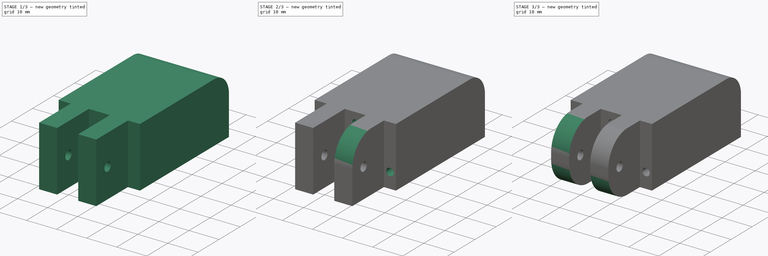
[diagram: build sequence overview — one tinted view per stage of 3, left to right]
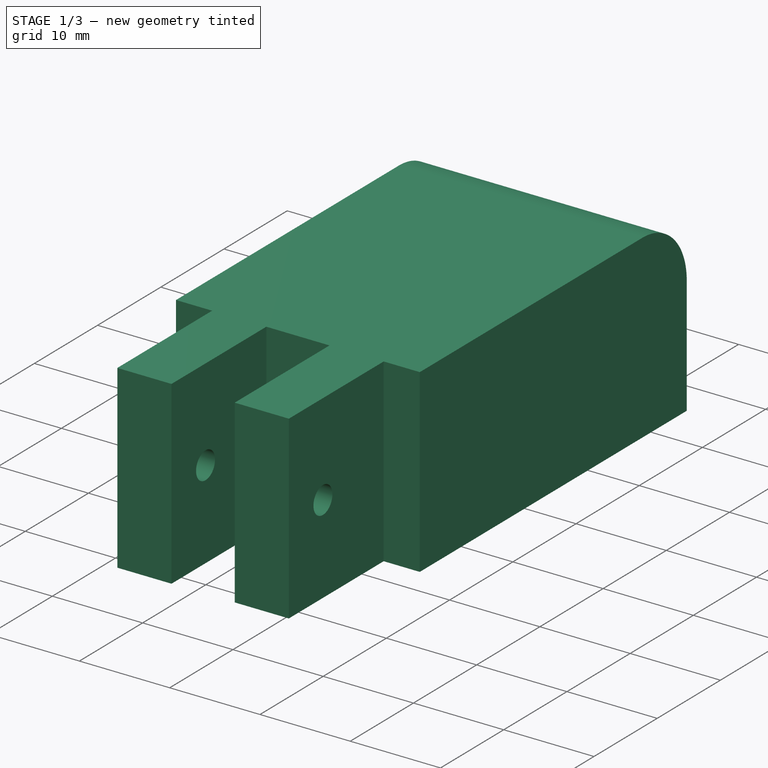
[diagram: stage 1 of 3 — iso view after this stage's code; geometry added in this stage tinted green]
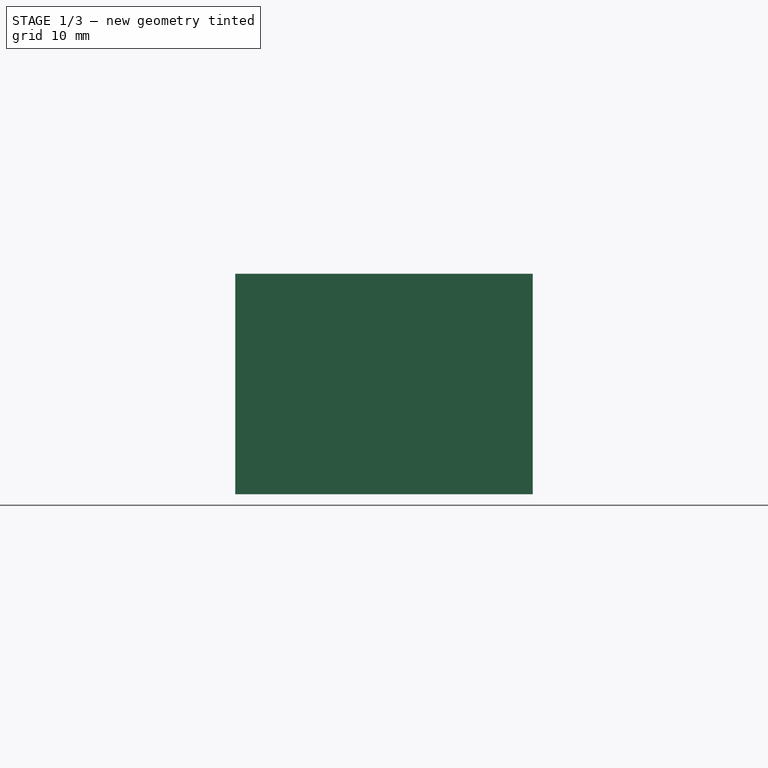
[diagram: stage 1 of 3 — front view after this stage's code; geometry added in this stage tinted green]
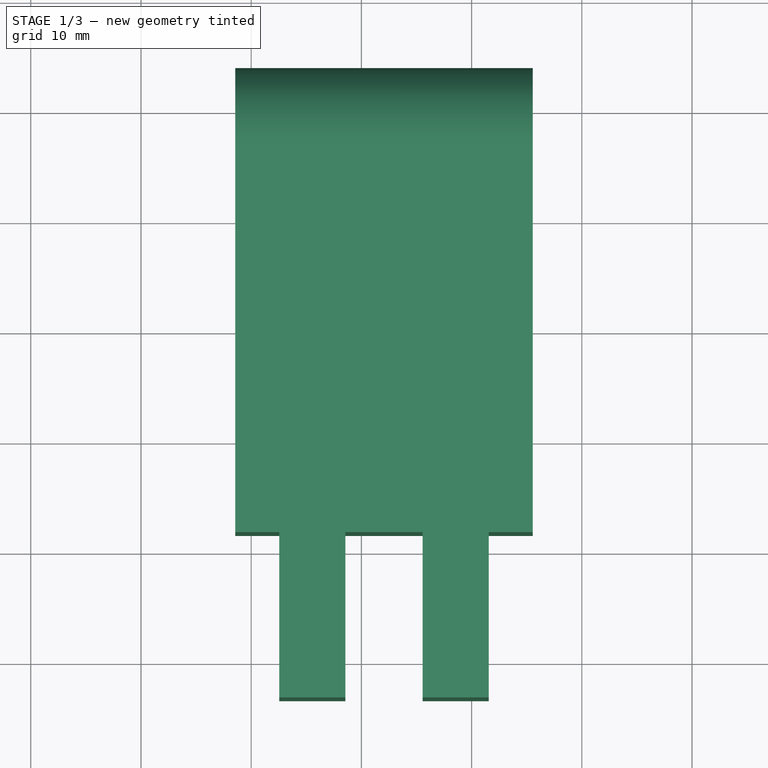
[diagram: stage 1 of 3 — top view after this stage's code; geometry added in this stage tinted green]
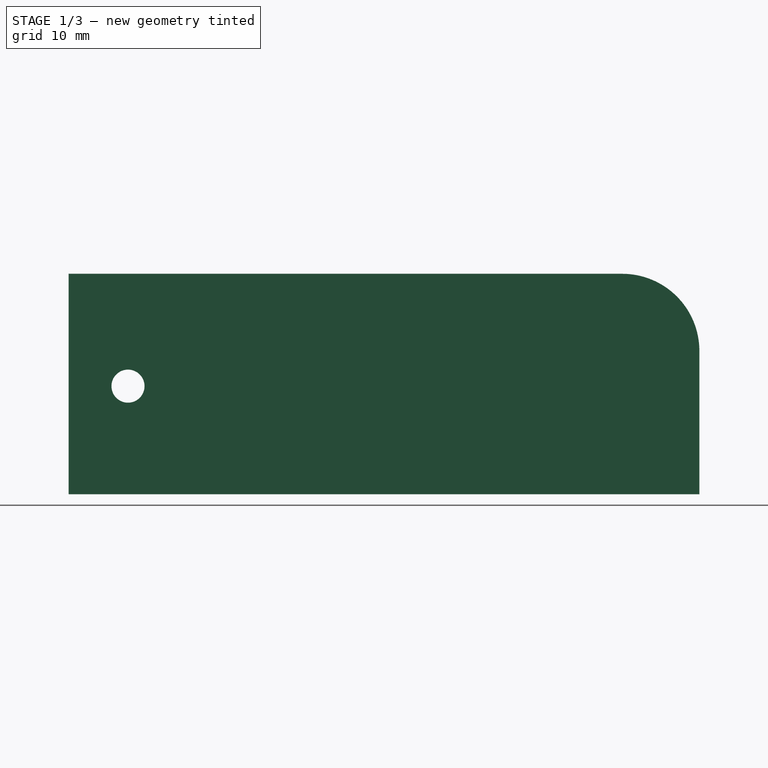
[diagram: stage 1 of 3 — right view after this stage's code; geometry added in this stage tinted green]
FCSTD DOCUMENT  (FreeCAD 0.20R29601 (Git))
Label: thumb_distal_final
License: All rights reserved
LicenseURL: http://en.wikipedia.org/wiki/All_rights_reserved
objects: PartDesign::Fillet×5, Sketcher::SketchObject×3, PartDesign::Pocket×2, PartDesign::Pad×1, PartDesign::Body×1
note: 20 computed .brp shape members not serialized (recipe doc carries the construction recipe); baked Part::Feature solids carry a one-line shape summary decoded from their .brp

FEATURE [Sketcher::SketchObject] Sketch
  FullyConstrained = false
  MapMode = 5
  Support = -> [XY_Plane]
  sketch-geometry (14):
    g0: LineSegment StartX=-31.448 StartY=43.8776 StartZ=0 EndX=-31.448 EndY=36.6423 EndZ=0
    g1: LineSegment StartX=-31.448 StartY=36.6423 StartZ=0 EndX=-31.448 EndY=1.6423 EndZ=0
    g2: LineSegment StartX=-31.448 StartY=1.6423 StartZ=0 EndX=-27.448 EndY=1.64228 EndZ=0
    g3: LineSegment StartX=-27.448 StartY=1.64228 StartZ=0 EndX=-27.448 EndY=-13.3577 EndZ=0
    g4: LineSegment StartX=-27.448 StartY=-13.3577 StartZ=0 EndX=-21.448 EndY=-13.3577 EndZ=0
    g5: LineSegment StartX=-21.448 StartY=-13.3577 StartZ=0 EndX=-21.448 EndY=1.64228 EndZ=0
    g6: LineSegment StartX=-21.448 StartY=1.64228 StartZ=0 EndX=-14.448 EndY=1.64228 EndZ=0
    g7: LineSegment StartX=-14.448 StartY=1.64228 StartZ=0 EndX=-14.448 EndY=-13.3577 EndZ=0
    g8: LineSegment StartX=-14.448 StartY=-13.3577 StartZ=0 EndX=-8.448 EndY=-13.3577 EndZ=0
    g9: LineSegment StartX=-8.448 StartY=-13.3577 StartZ=0 EndX=-8.448 EndY=1.64193 EndZ=0
    g10: LineSegment StartX=-8.448 StartY=1.64193 StartZ=0 EndX=-4.448 EndY=1.64193 EndZ=0
    g11: LineSegment StartX=-4.448 StartY=1.64193 StartZ=0 EndX=-4.448 EndY=36.6419 EndZ=0
    g12: LineSegment StartX=-4.448 StartY=36.6419 StartZ=0 EndX=-4.448 EndY=43.8776 EndZ=0
    g13: LineSegment StartX=-4.448 StartY=43.8776 StartZ=0 EndX=-31.448 EndY=43.8776 EndZ=0
  constraints (38):
    c: Vertical(g0)
    c: Coincident(g0,g1)
    c: Vertical(g1)
    c: Coincident(g1,g2)
    c: Coincident(g2,g3)
    c: Vertical(g3)
    c: Coincident(g3,g4)
    c: Horizontal(g4)
    c: Coincident(g4,g5)
    c: Vertical(g5)
    c: Coincident(g5,g6)
    c: Horizontal(g6)
    c: Coincident(g6,g7)
    c: Vertical(g7)
    c: Coincident(g7,g8)
    c: Horizontal(g8)
    c: Coincident(g8,g9)
    c: Vertical(g9)
    c: Coincident(g9,g10)
    c: Horizontal(g10)
    c: Coincident(g10,g11)
    c: Vertical(g11)
    c: Coincident(g11,g12)
    c: Vertical(g12)
    c: Coincident(g12,g13)
    c: Coincident(g13,g0)
    c: Horizontal(g13)
    c: Distance(g13) = 27
    c: Distance(g1) = 35
    c: Distance(g11) = 35
    c: Distance(g2) = 4
    c: Distance(g10) = 4
    c: Distance(g3) = 15
    c: Distance(g7) = 15
    c: Distance(g6) = 7
    c: Distance(g4) = 6
    c: Distance(g8) = 6
    c: Distance(g5) = 15
FEATURE [PartDesign::Pad] Pad
  Direction = (0,0,1)
  Length = 20
  Length2 = 10
  Profile = -> Sketch
  ReferenceAxis = -> Sketch [N_Axis]
  Type = 0
FEATURE [PartDesign::Fillet] Fillet
  Base = -> Pad [Edge42]
  BaseFeature = -> Pad
  Radius = 7
  SupportTransform = false
  UseAllEdges = false
FEATURE [Sketcher::SketchObject] Sketch001
  FullyConstrained = false
  MapMode = 5
  Placement = pos=(-8.448,0,0) rot=(0.57735,0.57735,0.57735;2.0944rad)
  Support = -> [Fillet]
  sketch-geometry (1):
    g0: Circle CenterX=-7.97036 CenterY=9.80514 CenterZ=0 NormalX=0 NormalY=0 NormalZ=1 AngleXU=0 Radius=1.5
FEATURE [PartDesign::Pocket] Pocket
  BaseFeature = -> Fillet
  Direction = (-1,0,0)
  Length = 5
  Length2 = 5
  Profile = -> Sketch001
  ReferenceAxis = -> Sketch001 [N_Axis]
  Type = 1
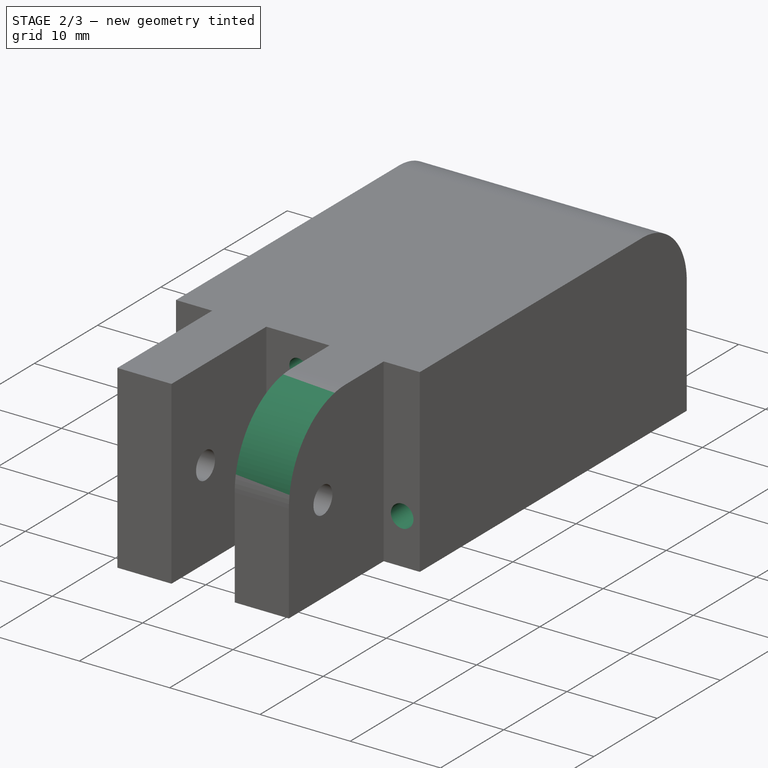
[diagram: stage 2 of 3 — iso view after this stage's code; geometry added in this stage tinted green]
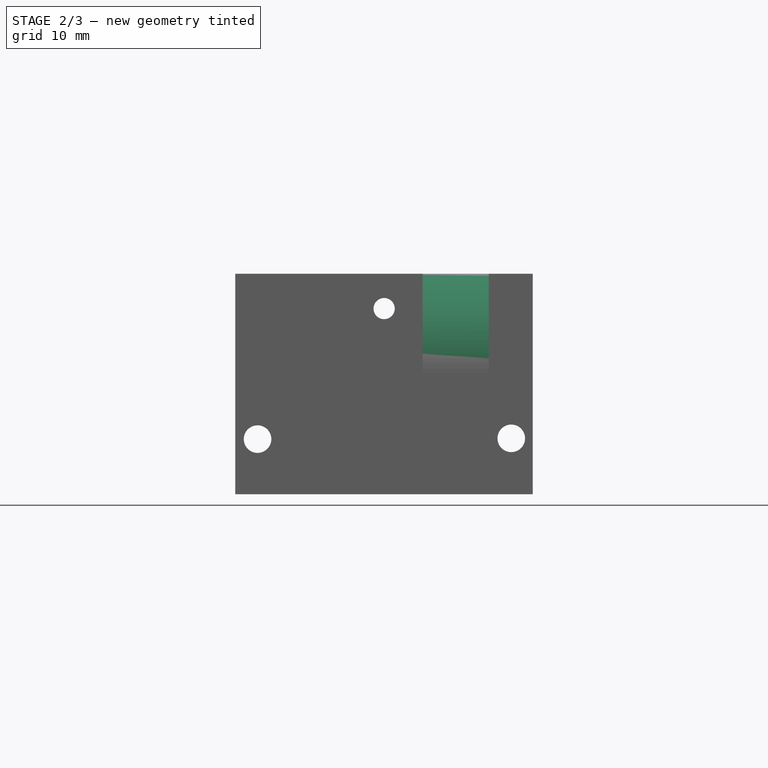
[diagram: stage 2 of 3 — front view after this stage's code; geometry added in this stage tinted green]
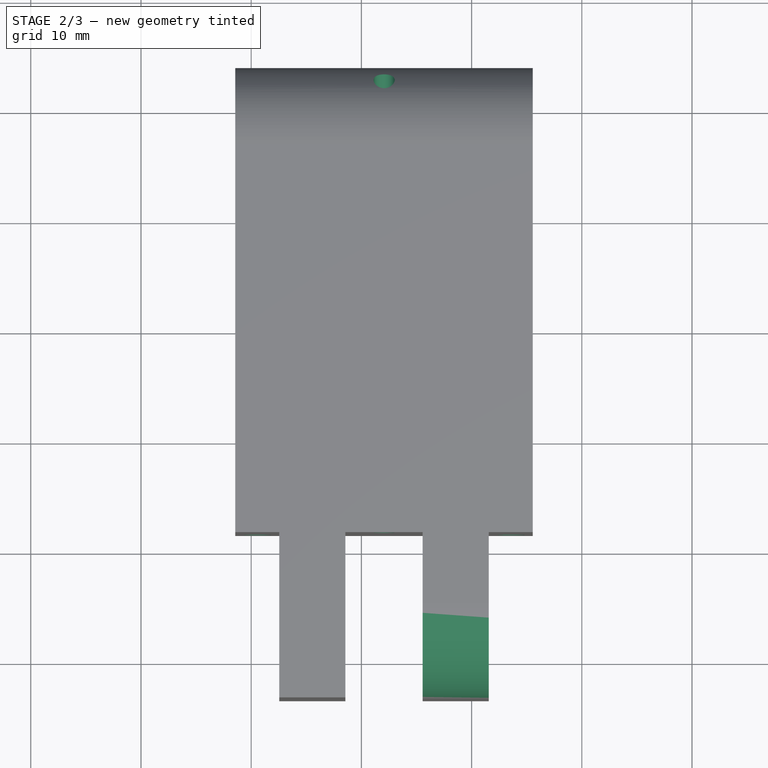
[diagram: stage 2 of 3 — top view after this stage's code; geometry added in this stage tinted green]
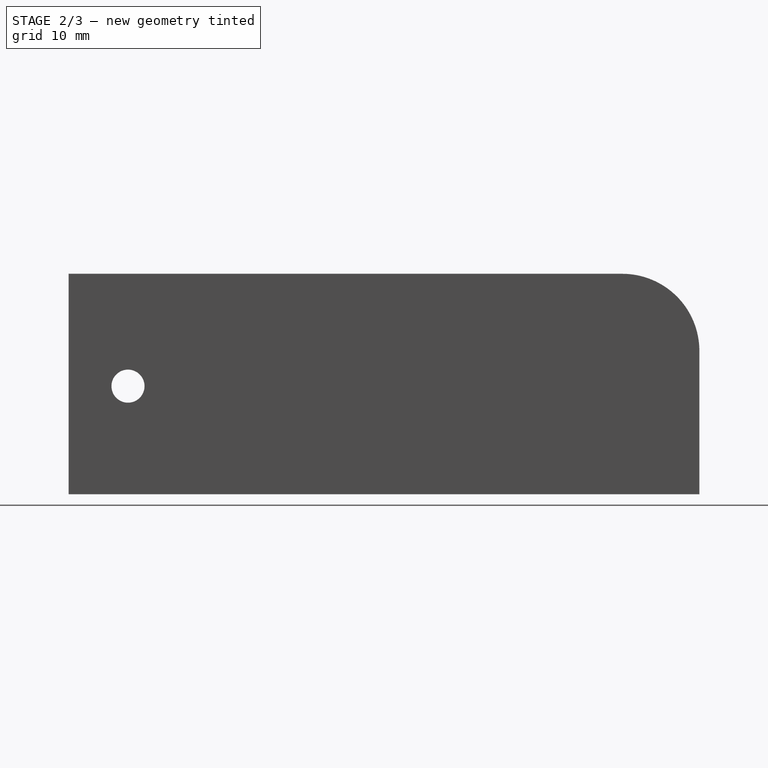
[diagram: stage 2 of 3 — right view after this stage's code; geometry added in this stage tinted green]
FEATURE [Sketcher::SketchObject] Sketch002
  FullyConstrained = false
  MapMode = 5
  Placement = pos=(0,1.64193,0) rot=(1,0,0;1.5708rad)
  Support = -> [Pocket]
  sketch-geometry (3):
    g0: Circle CenterX=-6.39881 CenterY=5.06822 CenterZ=0 NormalX=0 NormalY=0 NormalZ=1 AngleXU=0 Radius=1.25
    g1: Circle CenterX=-29.4215 CenterY=5 CenterZ=0 NormalX=0 NormalY=0 NormalZ=1 AngleXU=0 Radius=1.25
    g2: Circle CenterX=-17.9353 CenterY=16.8427 CenterZ=0 NormalX=0 NormalY=0 NormalZ=1 AngleXU=0 Radius=0.961399
FEATURE [PartDesign::Pocket] Pocket001
  BaseFeature = -> Pocket
  Direction = (0,1,-2e-16)
  Length = 5
  Length2 = 5
  Profile = -> Sketch002
  ReferenceAxis = -> Sketch002 [N_Axis]
  Type = 1
FEATURE [PartDesign::Fillet] Fillet001
  Base = -> Pocket001 [Edge35]
  BaseFeature = -> Pocket001
  Radius = 9
  SupportTransform = false
  UseAllEdges = false
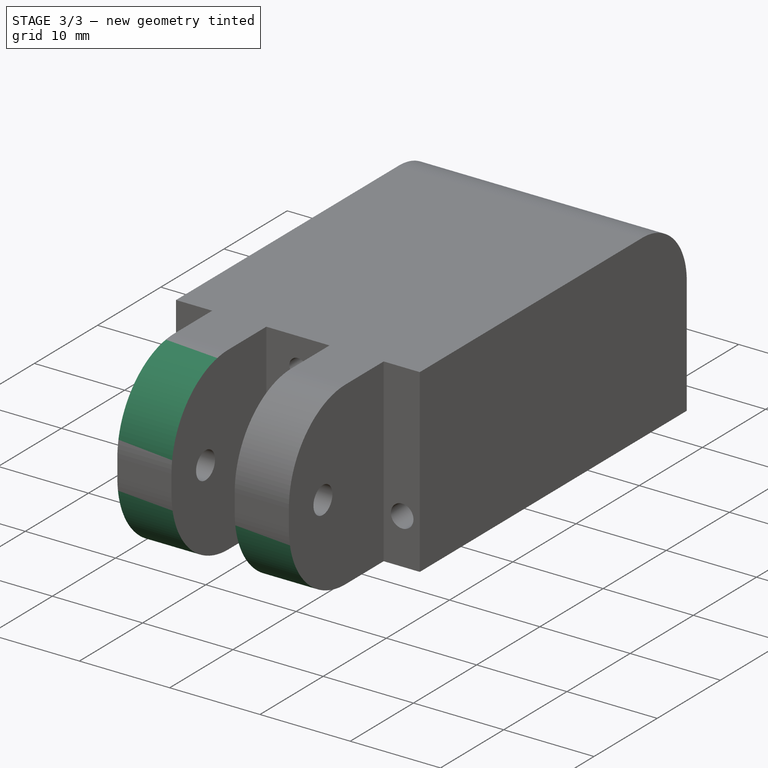
[diagram: stage 3 of 3 — iso view after this stage's code; geometry added in this stage tinted green]
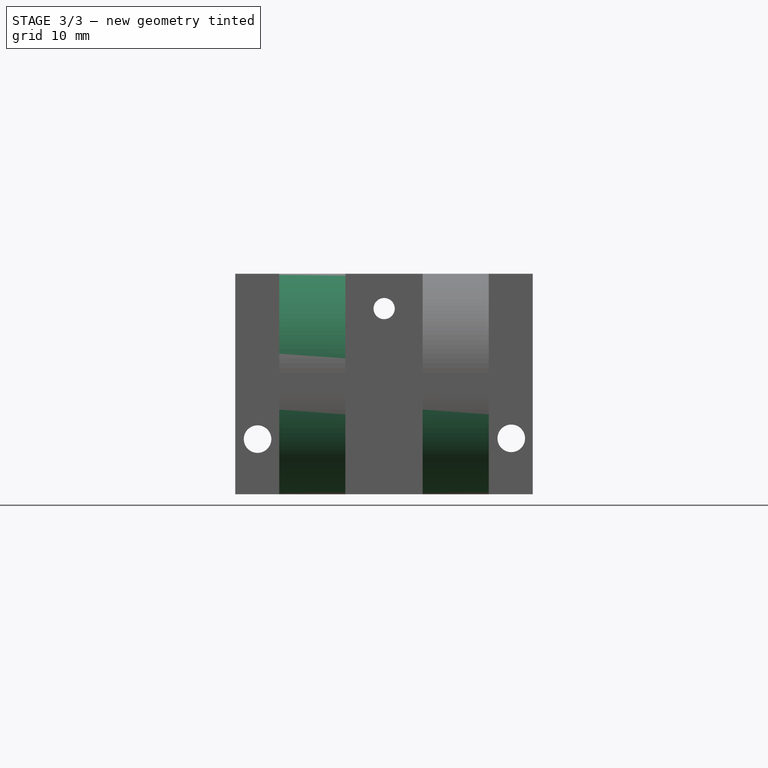
[diagram: stage 3 of 3 — front view after this stage's code; geometry added in this stage tinted green]
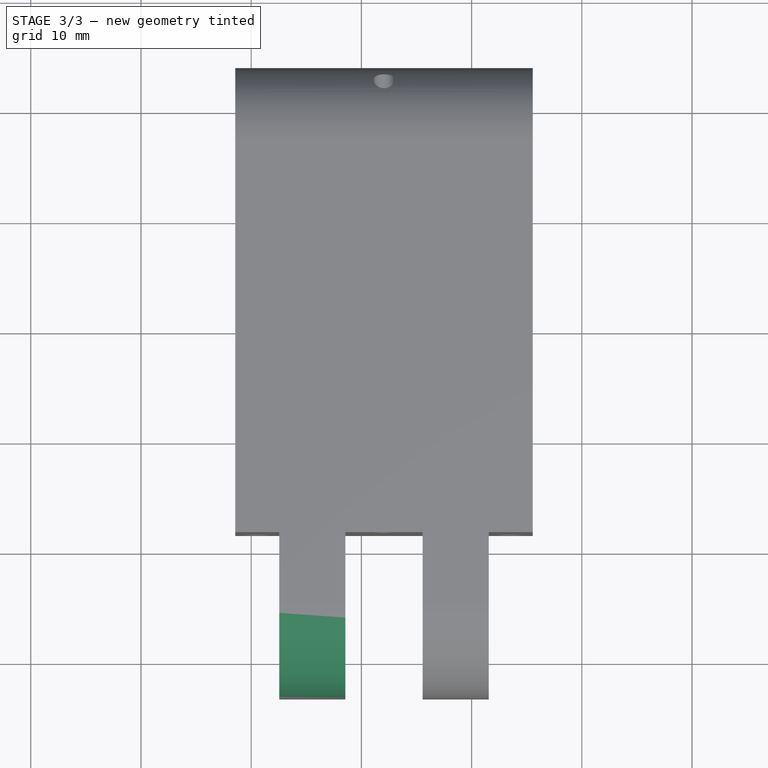
[diagram: stage 3 of 3 — top view after this stage's code; geometry added in this stage tinted green]
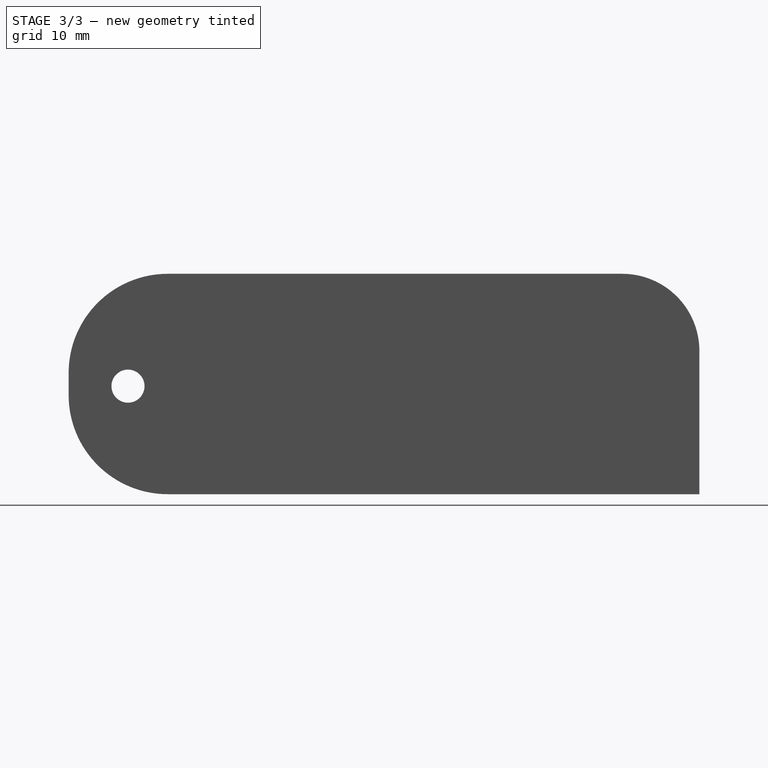
[diagram: stage 3 of 3 — right view after this stage's code; geometry added in this stage tinted green]
FEATURE [PartDesign::Fillet] Fillet002
  Base = -> Fillet001 [Edge10]
  BaseFeature = -> Fillet001
  Radius = 9
  SupportTransform = false
  UseAllEdges = false
FEATURE [PartDesign::Fillet] Fillet003
  Base = -> Fillet002 [Edge58]
  BaseFeature = -> Fillet002
  Radius = 9
  SupportTransform = false
  UseAllEdges = false
FEATURE [PartDesign::Fillet] Fillet004
  Base = -> Fillet003 [Edge19]
  BaseFeature = -> Fillet003
  Radius = 9
  SupportTransform = false
  UseAllEdges = false
FEATURE [PartDesign::Body] Body
  Group = -> [Sketch,Pad,Fillet,Sketch001,Pocket,Sketch002,Pocket001,Fillet001,Fillet002,Fillet003,Fillet004]
  Origin = -> Origin
  Tip = -> Fillet004
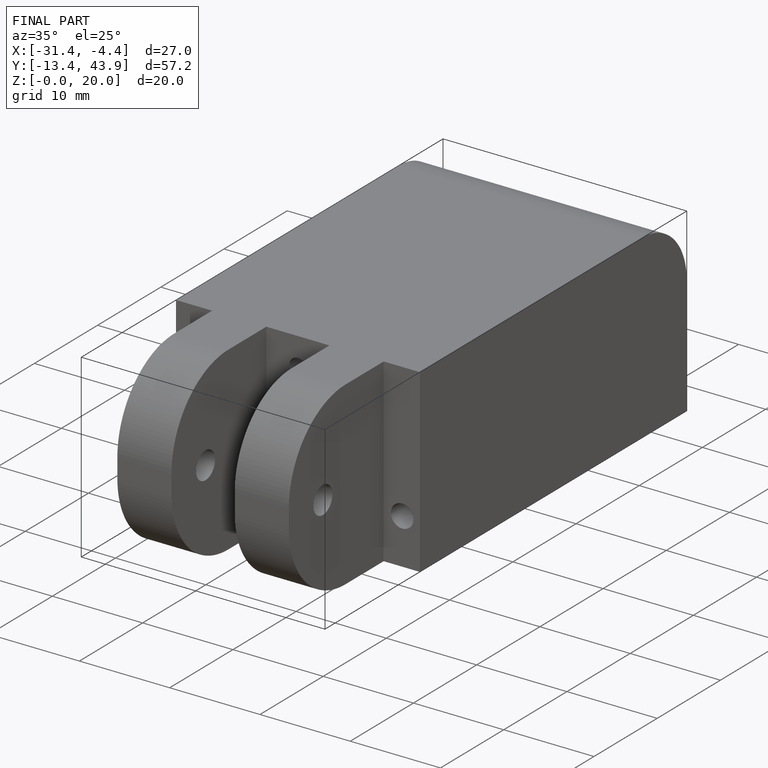
[diagram: finished part — iso view with bounding-box wireframe]
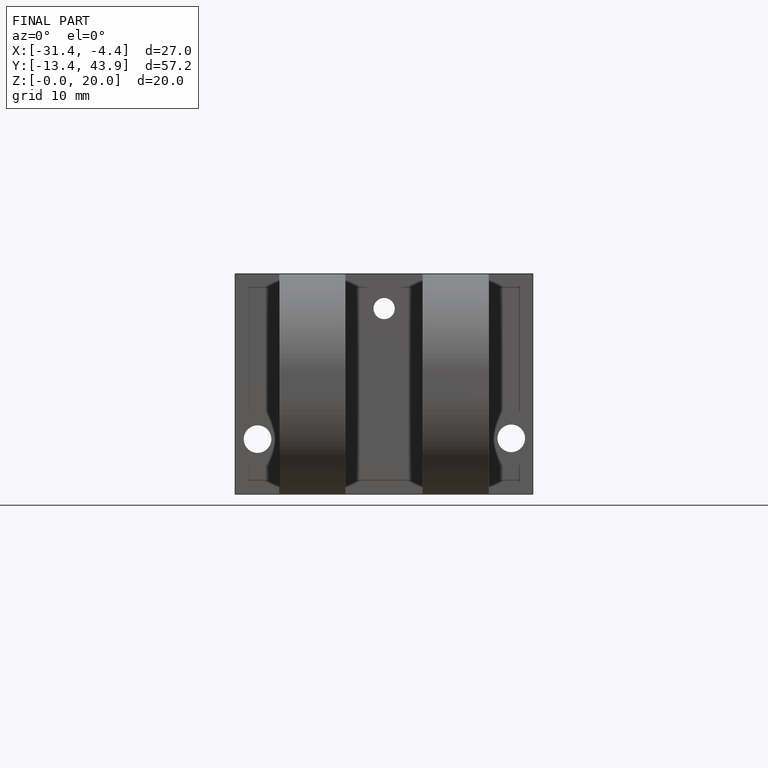
[diagram: finished part — front view with bounding-box wireframe]
